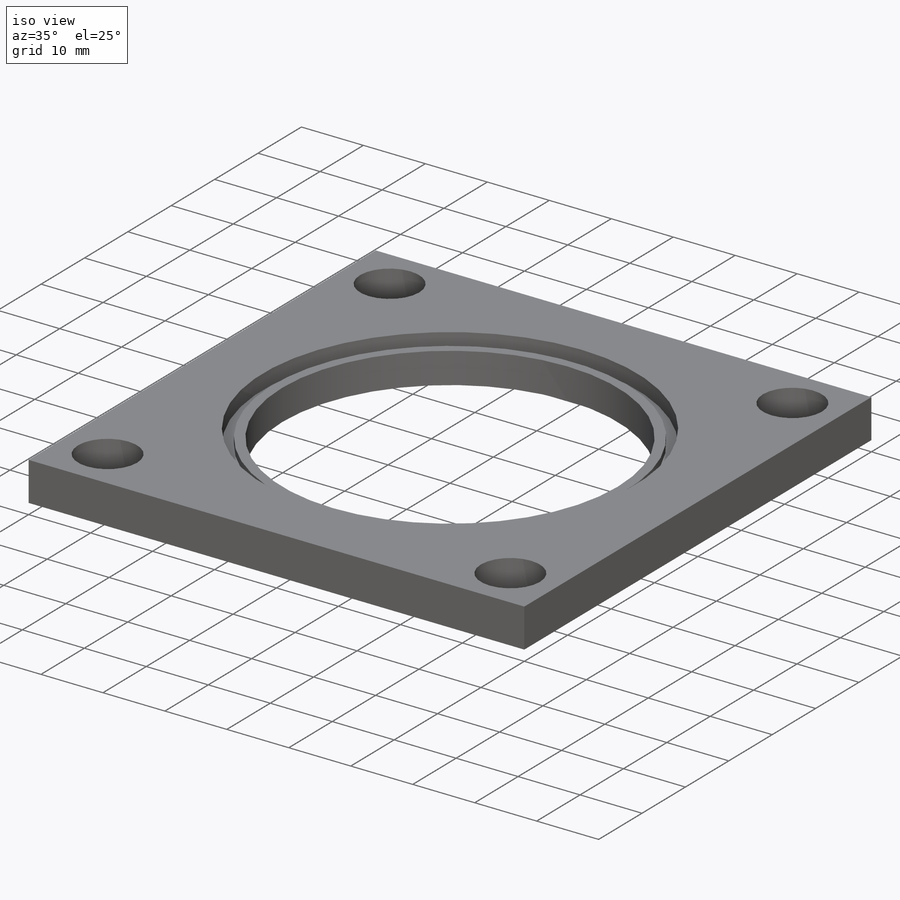
[diagram: iso view]
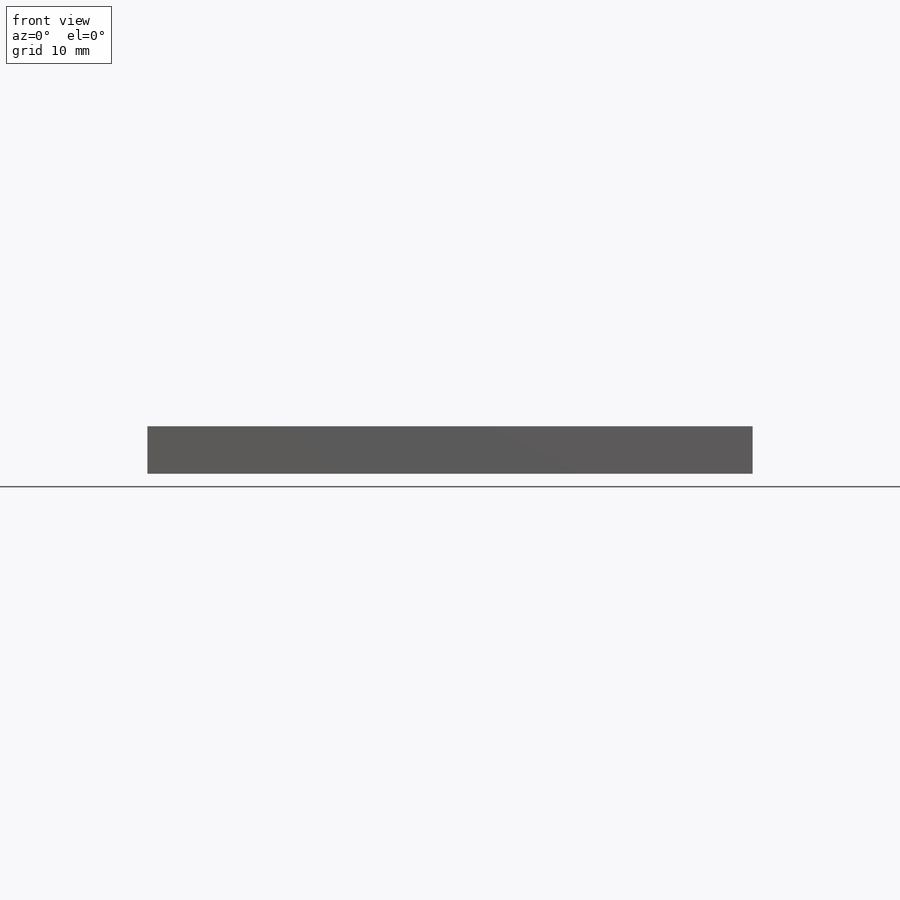
[diagram: front view]
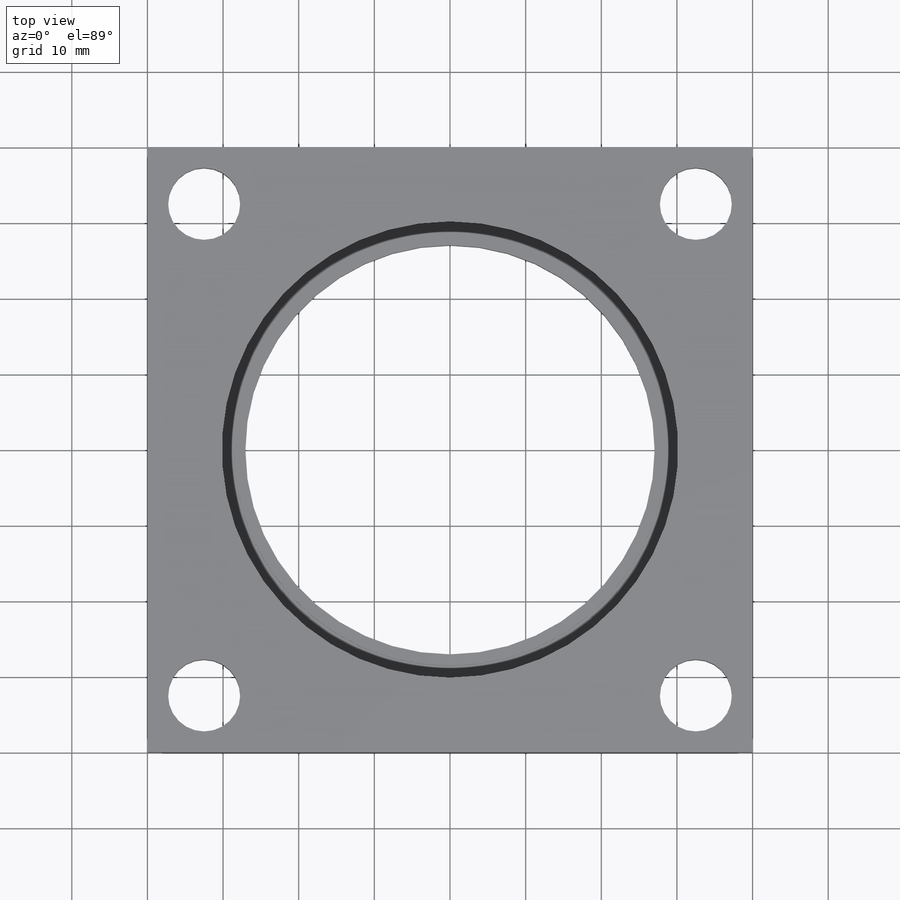
[diagram: top view]
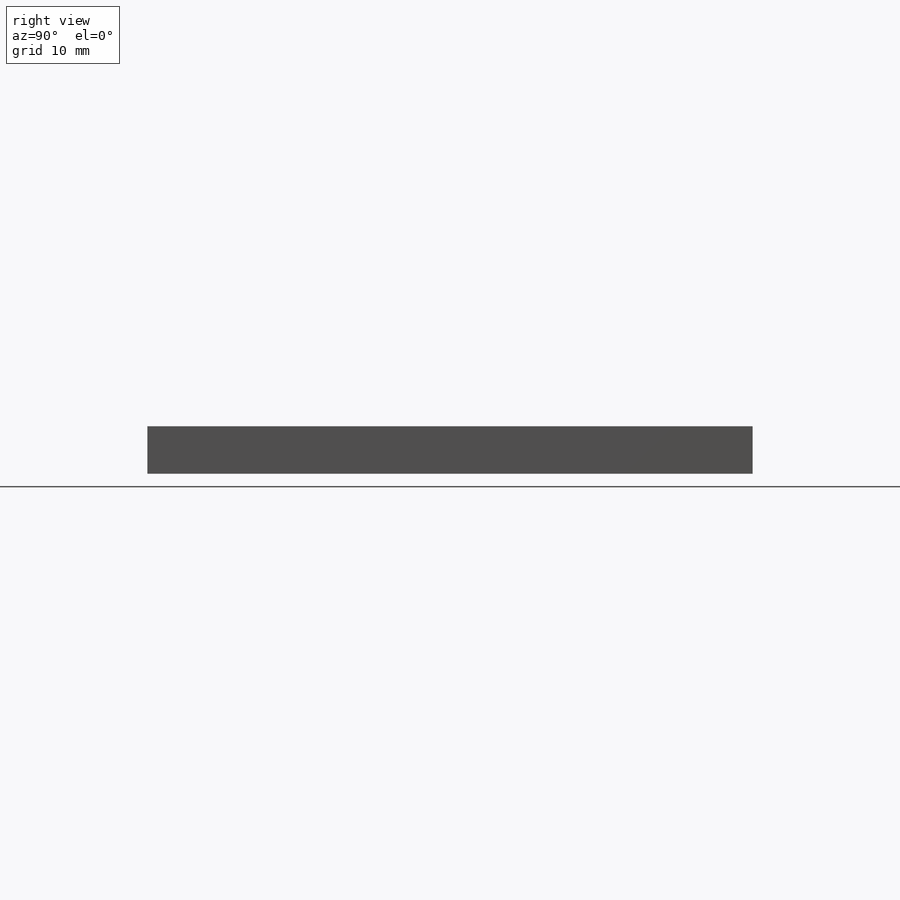
[diagram: right view]
SOLIDWORKS PART (.sldprt)
format: sldprt  version: not decoded by parser v0  size: 210,432 bytes
history: native  units: mm
features: sketch x5, cut_extrude x4, material x1, extrude x1 (+13 scaffold rows collapsed)
feature tree (24):
  scaffold x13  (default folders/planes/origin — collapsed)
  material  "Material <not specified>"
  sketch  "plateOutline"  dims[D1=80.0mm D2=100.0mm]
  sketch  "railGuides"  dims[D1=19.0mm]
  sketch  "FuelGrainMounting"  dims[D1=25.4mm]
  sketch  "GasIntake"  dims[D1=6.35mm]
  extrude  "Boss-Extrude1"  Depth=6.2738mm
  cut_extrude  "Cut-Extrude1"  Depth=10mm
  cut_extrude  "Cut-Extrude2"  Depth=5mm
  cut_extrude  "Cut-Extrude3"  Depth=5mm
  sketch  "Sketch1"  dims[D1=60.325mm D2=57.15mm]
  cut_extrude  "Cut-Extrude4"  Depth=1.143mm
decode coverage: 10 of 10 modeling features carry decoded parameters
note: suppression state not decoded; provenance and decode notes live in map.json
